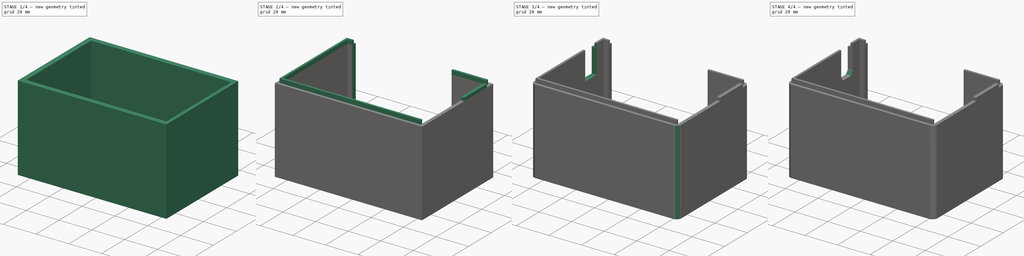
[diagram: build sequence overview — one tinted view per stage of 4, left to right]
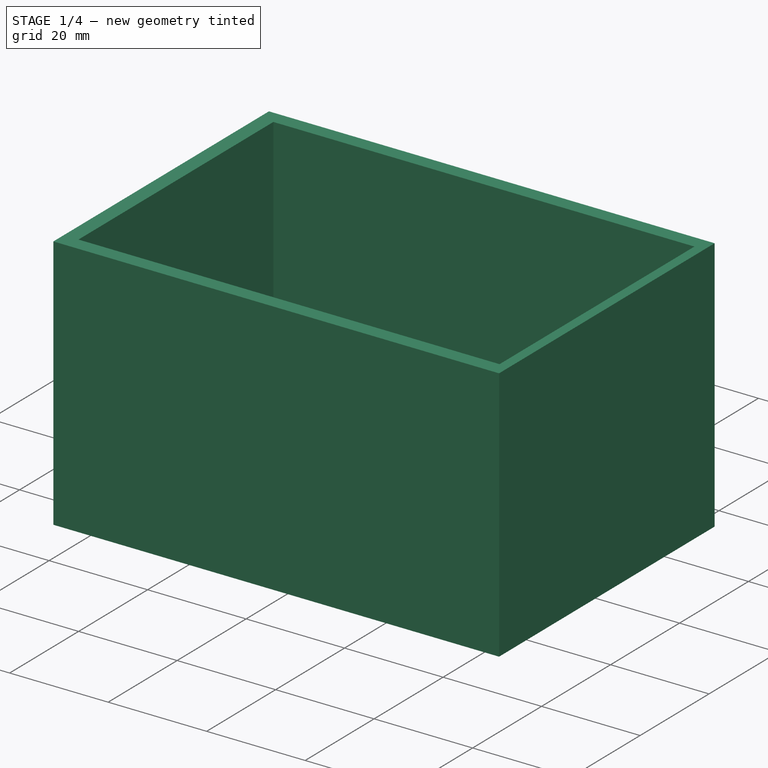
[diagram: stage 1 of 4 — iso view after this stage's code; geometry added in this stage tinted green]
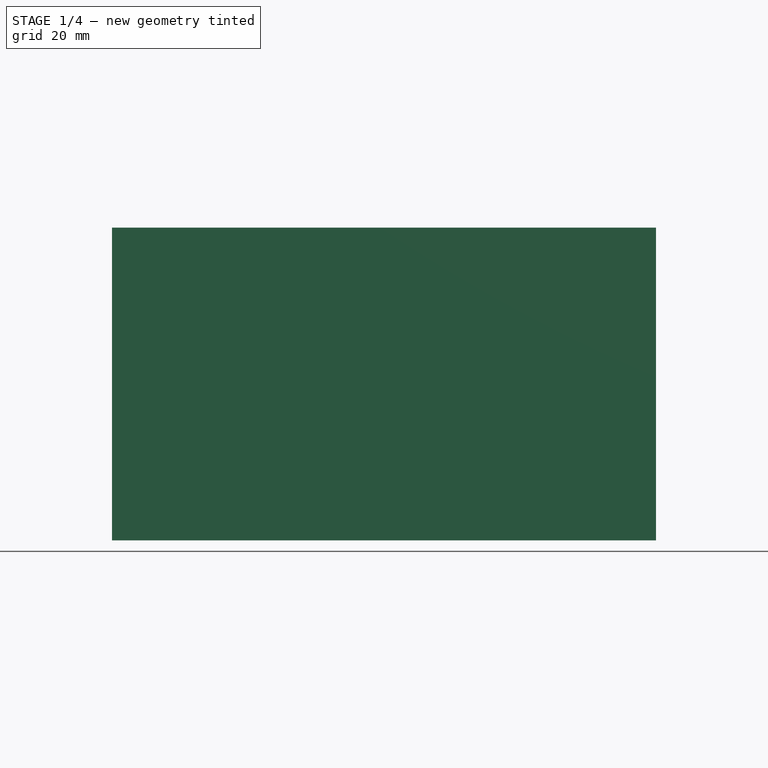
[diagram: stage 1 of 4 — front view after this stage's code; geometry added in this stage tinted green]
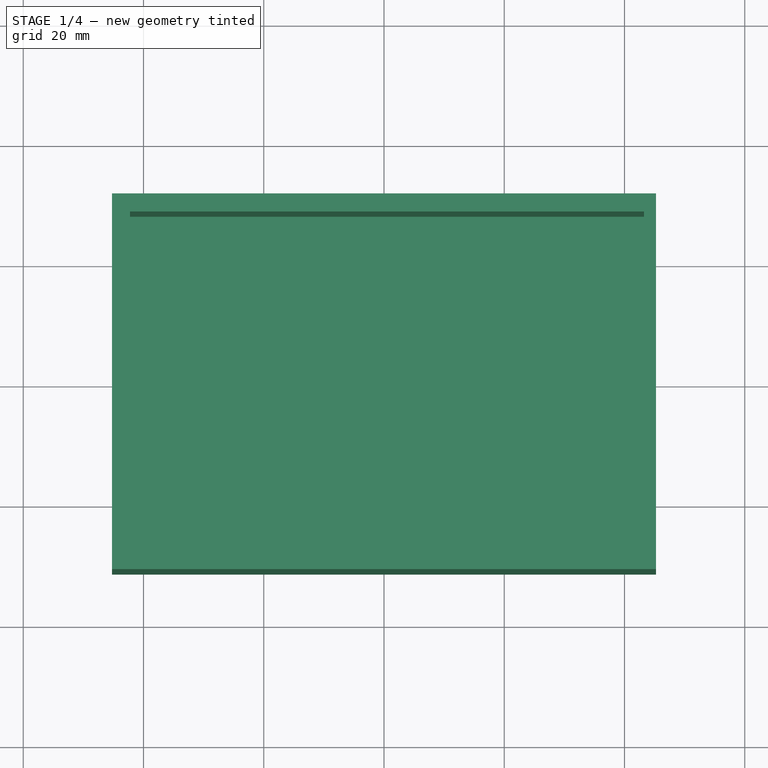
[diagram: stage 1 of 4 — top view after this stage's code; geometry added in this stage tinted green]
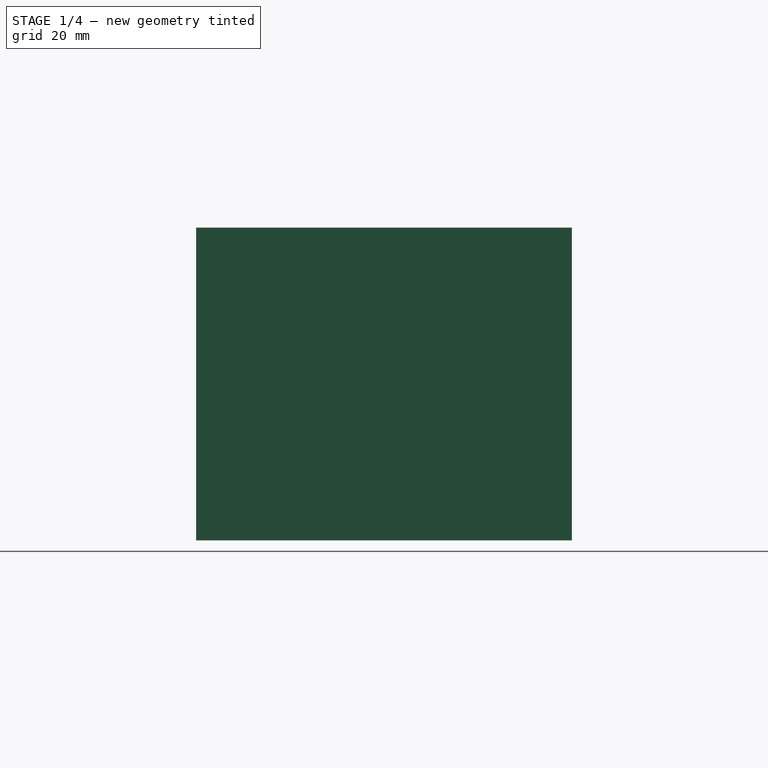
[diagram: stage 1 of 4 — right view after this stage's code; geometry added in this stage tinted green]
FCSTD DOCUMENT  (FreeCAD 0.19R19180 (Git))
Label: top
License: All rights reserved
LicenseURL: http://en.wikipedia.org/wiki/All_rights_reserved
objects: Sketcher::SketchObject×7, PartDesign::Pad×4, PartDesign::Pocket×4, PartDesign::Fillet×2, PartDesign::Body×1
note: 26 computed .brp shape members not serialized (recipe doc carries the construction recipe); baked Part::Feature solids carry a one-line shape summary decoded from their .brp

FEATURE [Sketcher::SketchObject] Sketch
  MapMode = 5
  Support = -> [XY_Plane]
  sketch-geometry (4):
    g0: LineSegment StartX=-45.25 StartY=31.25 StartZ=0 EndX=45.25 EndY=31.25 EndZ=0
    g1: LineSegment StartX=45.25 StartY=31.25 StartZ=0 EndX=45.25 EndY=-31.25 EndZ=0
    g2: LineSegment StartX=45.25 StartY=-31.25 StartZ=0 EndX=-45.25 EndY=-31.25 EndZ=0
    g3: LineSegment StartX=-45.25 StartY=-31.25 StartZ=0 EndX=-45.25 EndY=31.25 EndZ=0
  constraints (12):
    c: Coincident(g0,g1)
    c: Coincident(g1,g2)
    c: Coincident(g2,g3)
    c: Coincident(g3,g0)
    c: Horizontal(g0)
    c: Horizontal(g2)
    c: Vertical(g1)
    c: Vertical(g3)
    c: DistanceX(g0,g0) = 90.5
    c: DistanceY(g1,g1) = 62.5
    c: DistanceX(g0,g-1) = 45.25
    c: DistanceY(g-1,g0) = 31.25
FEATURE [PartDesign::Pad] Pad
  Length = 52
  Length2 = 100
  Profile = -> Sketch
  Type = 0
FEATURE [Sketcher::SketchObject] Sketch001
  ExternalGeometry = -> [Pad]
  MapMode = 5
  Placement = pos=(0,0,52) rot=(0,0,1;0rad)
  Support = -> [Pad]
  sketch-geometry (4):
    g0: LineSegment StartX=-42.25 StartY=28.25 StartZ=0 EndX=43.25 EndY=28.25 EndZ=0
    g1: LineSegment StartX=43.25 StartY=28.25 StartZ=0 EndX=43.25 EndY=-28.25 EndZ=0
    g2: LineSegment StartX=43.25 StartY=-28.25 StartZ=0 EndX=-42.25 EndY=-28.25 EndZ=0
    g3: LineSegment StartX=-42.25 StartY=-28.25 StartZ=0 EndX=-42.25 EndY=28.25 EndZ=0
  constraints (12):
    c: Coincident(g0,g1)
    c: Coincident(g1,g2)
    c: Coincident(g2,g3)
    c: Coincident(g3,g0)
    c: Horizontal(g0)
    c: Horizontal(g2)
    c: Vertical(g1)
    c: Vertical(g3)
    c: DistanceX(g0,g-3) = 2
    c: DistanceY(g0,g-3) = 3
    c: DistanceX(g-5,g2) = 3
    c: DistanceY(g-5,g2) = 3
FEATURE [PartDesign::Pocket] Pocket
  BaseFeature = -> Pad
  Length = 50
  Length2 = 100
  Profile = -> Sketch001
  Type = 0
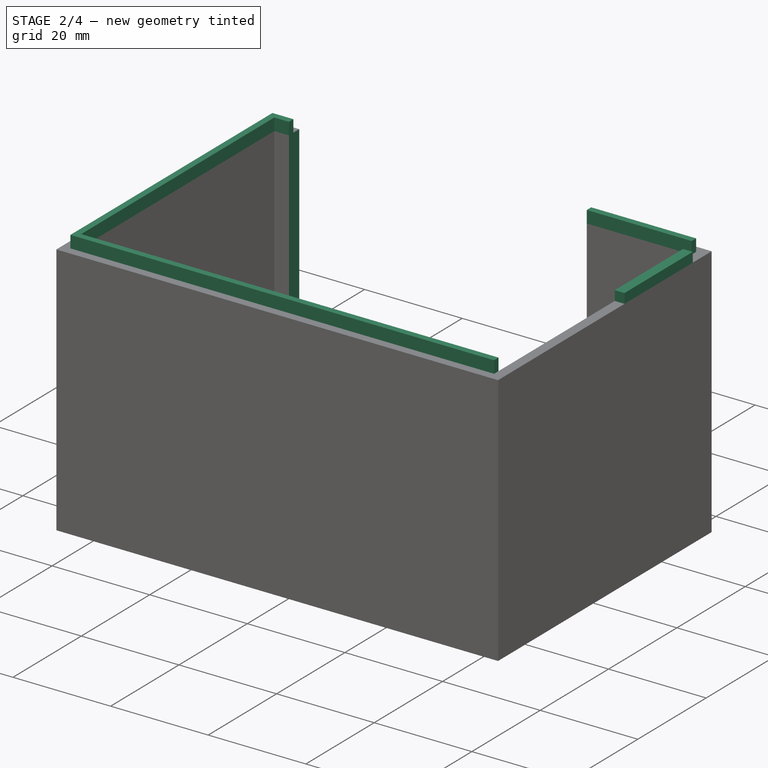
[diagram: stage 2 of 4 — iso view after this stage's code; geometry added in this stage tinted green]
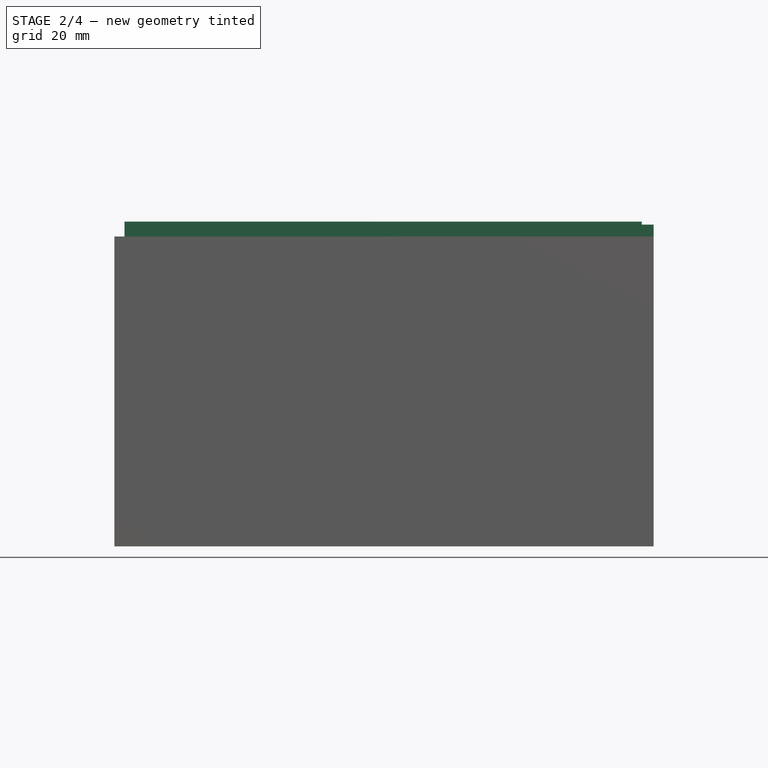
[diagram: stage 2 of 4 — front view after this stage's code; geometry added in this stage tinted green]
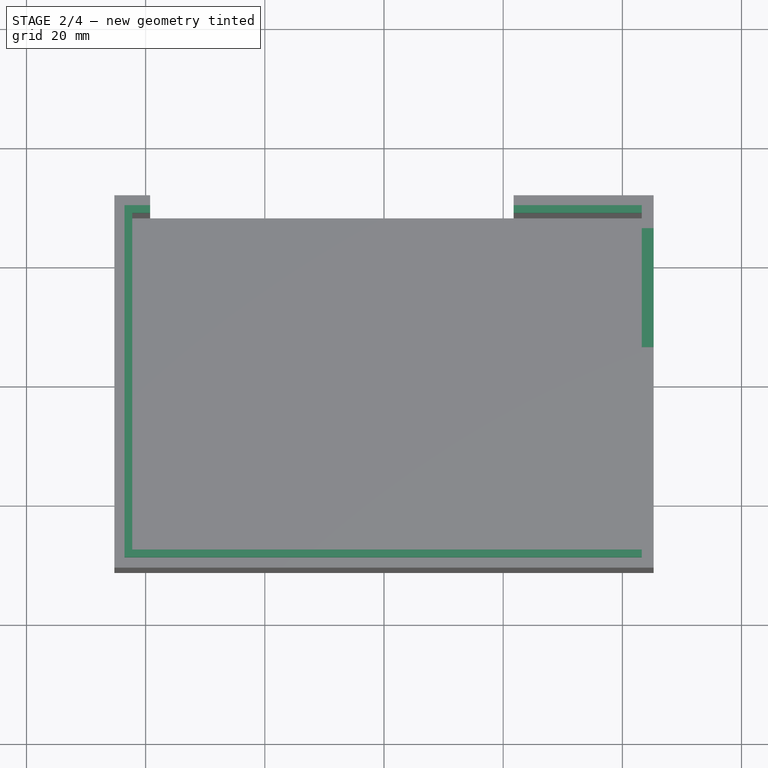
[diagram: stage 2 of 4 — top view after this stage's code; geometry added in this stage tinted green]
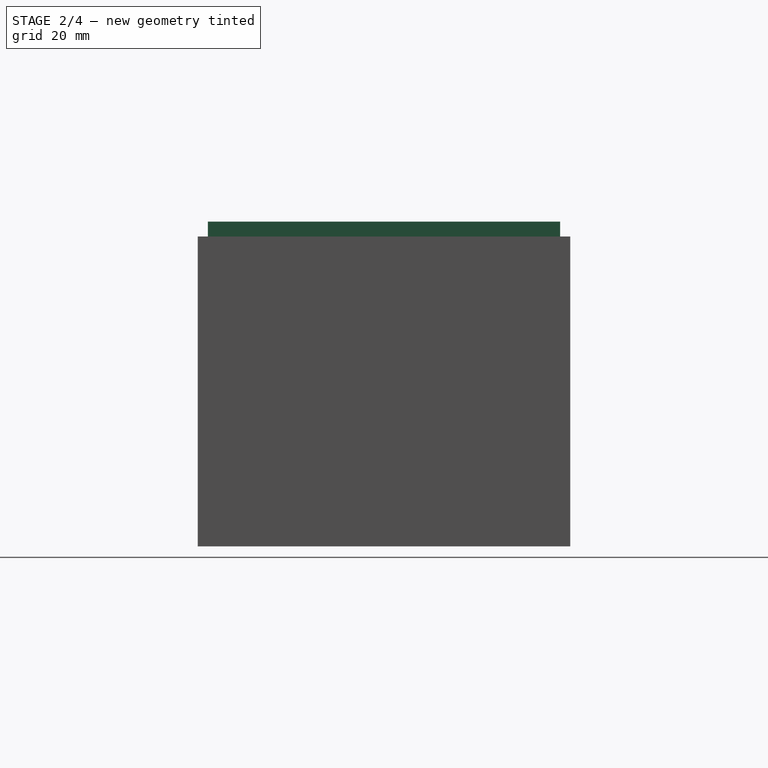
[diagram: stage 2 of 4 — right view after this stage's code; geometry added in this stage tinted green]
FEATURE [Sketcher::SketchObject] Sketch002
  ExternalGeometry = -> [Pocket]
  MapMode = 5
  Placement = pos=(0,0,52) rot=(0,0,1;0rad)
  Support = -> [Pocket]
  sketch-geometry (4):
    g0: LineSegment StartX=-39.25 StartY=31.25 StartZ=0 EndX=21.75 EndY=31.25 EndZ=0
    g1: LineSegment StartX=21.75 StartY=31.25 StartZ=0 EndX=21.75 EndY=28.25 EndZ=0
    g2: LineSegment StartX=21.75 StartY=28.25 StartZ=0 EndX=-39.25 EndY=28.25 EndZ=0
    g3: LineSegment StartX=-39.25 StartY=28.25 StartZ=0 EndX=-39.25 EndY=31.25 EndZ=0
  constraints (12):
    c: Coincident(g0,g1)
    c: Coincident(g1,g2)
    c: Coincident(g2,g3)
    c: Coincident(g3,g0)
    c: Horizontal(g0)
    c: Horizontal(g2)
    c: Vertical(g1)
    c: Vertical(g3)
    c: Horizontal(g2,g-3)
    c: Horizontal(g0,g-4)
    c: DistanceX(g-3,g2) = 3
    c: DistanceX(g0,g0) = 61
FEATURE [PartDesign::Pocket] Pocket001
  BaseFeature = -> Pocket
  Length = 52
  Length2 = 100
  Profile = -> Sketch002
  Type = 0
FEATURE [Sketcher::SketchObject] Sketch003
  ExternalGeometry = -> [Pocket001]
  MapMode = 5
  Placement = pos=(0,0,52) rot=(0,0,1;0rad)
  Support = -> [Pocket001]
  sketch-geometry (16):
    g0: LineSegment StartX=-42.25 StartY=29.55 StartZ=0 EndX=-39.25 EndY=29.55 EndZ=0
    g1: LineSegment StartX=-39.25 StartY=29.55 StartZ=0 EndX=-39.25 EndY=28.25 EndZ=0
    g2: LineSegment StartX=-39.25 StartY=28.25 StartZ=0 EndX=-42.25 EndY=28.25 EndZ=0
    g3: LineSegment StartX=-42.25 StartY=28.25 StartZ=0 EndX=-42.25 EndY=29.55 EndZ=0
    g4: LineSegment StartX=-43.55 StartY=29.55 StartZ=0 EndX=-42.25 EndY=29.55 EndZ=0
    g5: LineSegment StartX=-42.25 StartY=29.55 StartZ=0 EndX=-42.25 EndY=-28.25 EndZ=0
    g6: LineSegment StartX=-42.25 StartY=-28.25 StartZ=0 EndX=-43.55 EndY=-28.25 EndZ=0
    g7: LineSegment StartX=-43.55 StartY=-28.25 StartZ=0 EndX=-43.55 EndY=29.55 EndZ=0
    g8: LineSegment StartX=-43.55 StartY=-28.25 StartZ=0 EndX=43.25 EndY=-28.25 EndZ=0
    g9: LineSegment StartX=43.25 StartY=-28.25 StartZ=0 EndX=43.25 EndY=-29.55 EndZ=0
    g10: LineSegment StartX=43.25 StartY=-29.55 StartZ=0 EndX=-43.55 EndY=-29.55 EndZ=0
    g11: LineSegment StartX=-43.55 StartY=-29.55 StartZ=0 EndX=-43.55 EndY=-28.25 EndZ=0
    g12: LineSegment StartX=21.75 StartY=29.55 StartZ=0 EndX=43.25 EndY=29.55 EndZ=0
    g13: LineSegment StartX=43.25 StartY=29.55 StartZ=0 EndX=43.25 EndY=28.25 EndZ=0
    g14: LineSegment StartX=43.25 StartY=28.25 StartZ=0 EndX=21.75 EndY=28.25 EndZ=0
    g15: LineSegment StartX=21.75 StartY=28.25 StartZ=0 EndX=21.75 EndY=29.55 EndZ=0
  constraints (44):
    c: Coincident(g0,g1)
    c: Coincident(g1,g2)
    c: Coincident(g2,g3)
    c: Coincident(g3,g0)
    c: Horizontal(g0)
    c: Horizontal(g2)
    c: Vertical(g1)
    c: Vertical(g3)
    c: Coincident(g2,g-3)
    c: Vertical(g0,g-4)
    c: DistanceY(g3,g3) = 1.3
    c: Coincident(g4,g5)
    c: Coincident(g5,g6)
    c: Coincident(g6,g7)
    c: Coincident(g7,g4)
    c: Horizontal(g4)
    c: Horizontal(g6)
    c: Vertical(g5)
    c: Vertical(g7)
    c: Coincident(g-5,g5)
    c: DistanceY(g0,g4) = 0
    c: DistanceX(g4,g4) = 1.3
    c: Coincident(g8,g9)
    c: Coincident(g9,g10)
    c: Coincident(g10,g11)
    c: Coincident(g11,g8)
    c: Horizontal(g8)
    c: Horizontal(g10)
    c: Vertical(g9)
    c: Vertical(g11)
    c: Coincident(g8,g6)
    c: DistanceY(g11,g11) = 1.3
    c: DistanceX(g8,g-6) = 0
    c: Coincident(g12,g13)
    c: Coincident(g13,g14)
    c: Coincident(g14,g15)
    c: Coincident(g15,g12)
    c: Horizontal(g12)
    c: Horizontal(g14)
    c: Vertical(g13)
    c: Vertical(g15)
    c: Coincident(g-7,g13)
    c: DistanceY(g13,g13) = 1.3
    c: Vertical(g12,g-8)
FEATURE [PartDesign::Pad] Pad001
  BaseFeature = -> Pocket001
  Length = 2.5
  Length2 = 100
  Profile = -> Sketch003
  Type = 0
FEATURE [Sketcher::SketchObject] Sketch004
  ExternalGeometry = -> [Pad001]
  MapMode = 5
  Placement = pos=(0,0,52) rot=(0,0,1;0rad)
  Support = -> [Pad001]
  sketch-geometry (4):
    g0: LineSegment StartX=43.25 StartY=25.7 StartZ=0 EndX=45.25 EndY=25.7 EndZ=0
    g1: LineSegment StartX=45.25 StartY=25.7 StartZ=0 EndX=45.25 EndY=5.75 EndZ=0
    g2: LineSegment StartX=45.25 StartY=5.75 StartZ=0 EndX=43.25 EndY=5.75 EndZ=0
    g3: LineSegment StartX=43.25 StartY=5.75 StartZ=0 EndX=43.25 EndY=25.7 EndZ=0
  constraints (12):
    c: Coincident(g0,g1)
    c: Coincident(g1,g2)
    c: Coincident(g2,g3)
    c: Coincident(g3,g0)
    c: Horizontal(g0)
    c: Horizontal(g2)
    c: Vertical(g1)
    c: Vertical(g3)
    c: Vertical(g1,g-3)
    c: Vertical(g-4,g0)
    c: DistanceY(g1,g-5) = 25.5
    c: DistanceY(g0,g-5) = 5.55
FEATURE [PartDesign::Pad] Pad002
  BaseFeature = -> Pad001
  Length = 2
  Length2 = 100
  Profile = -> Sketch004
  Type = 0
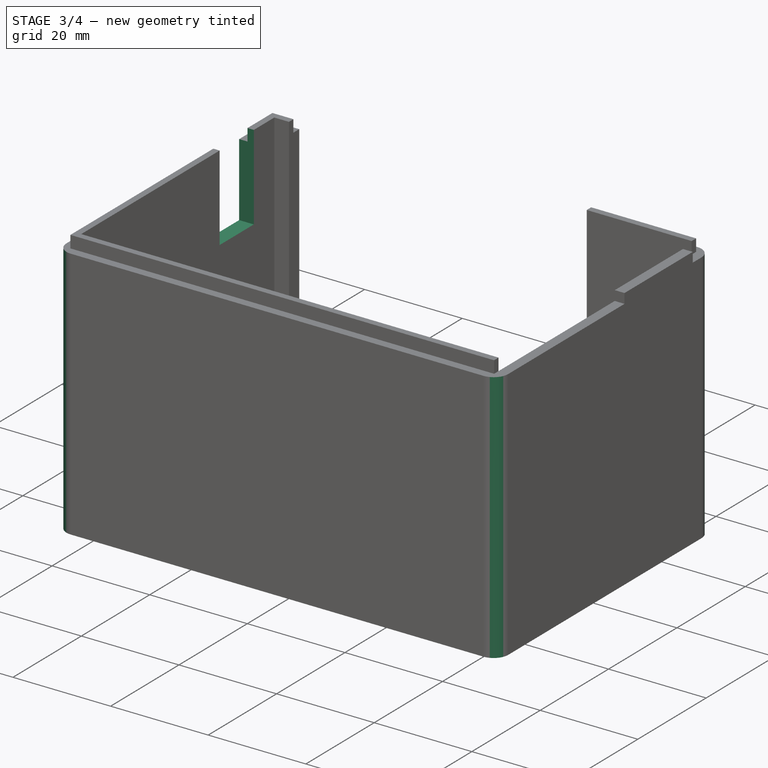
[diagram: stage 3 of 4 — iso view after this stage's code; geometry added in this stage tinted green]
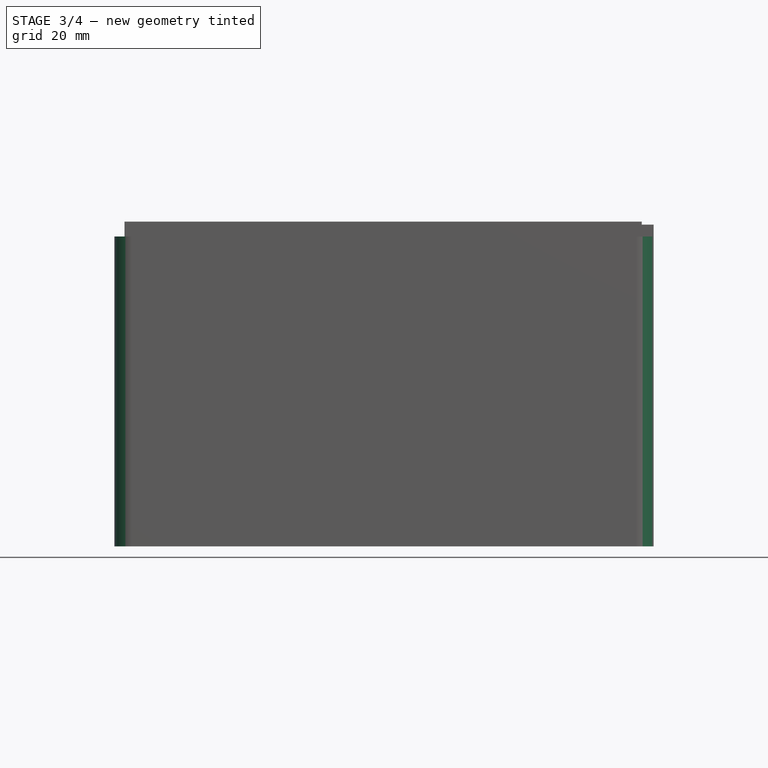
[diagram: stage 3 of 4 — front view after this stage's code; geometry added in this stage tinted green]
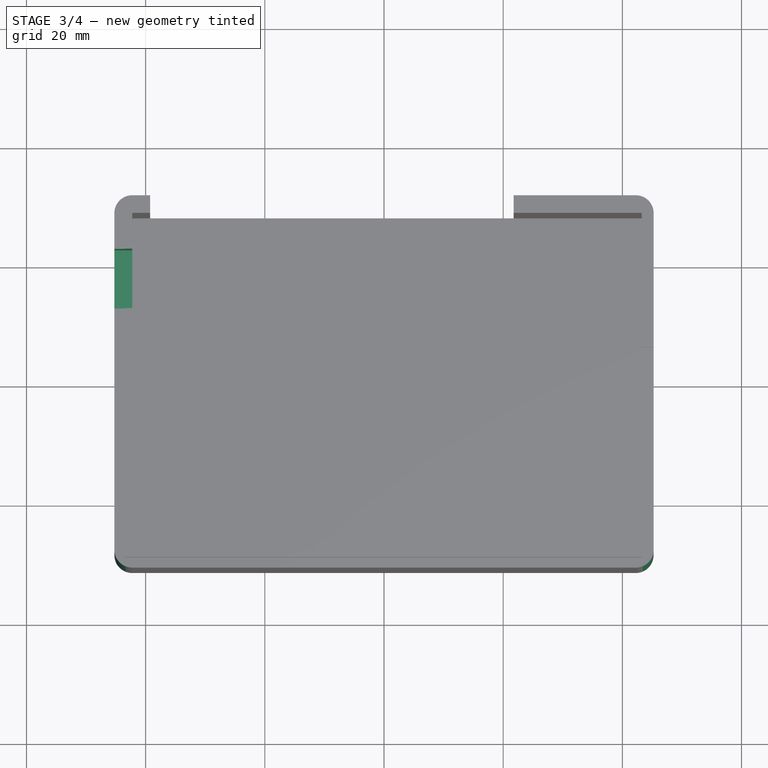
[diagram: stage 3 of 4 — top view after this stage's code; geometry added in this stage tinted green]
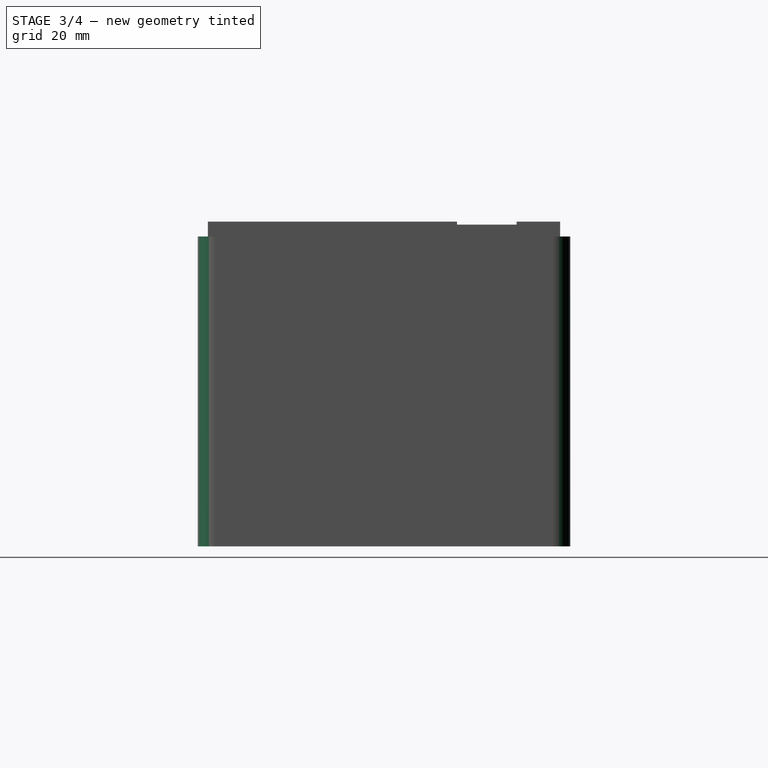
[diagram: stage 3 of 4 — right view after this stage's code; geometry added in this stage tinted green]
FEATURE [PartDesign::Pad] Pad003
  BaseFeature = -> Pad002
  Length = 2
  Length2 = 100
  Profile = -> Sketch004
  Type = 0
FEATURE [PartDesign::Fillet] Fillet
  Base = -> Pad003 [Edge29,Edge28,Edge4,Edge27]
  BaseFeature = -> Pad003
  Radius = 3
FEATURE [Sketcher::SketchObject] Sketch005
  ExternalGeometry = -> [Fillet]
  MapMode = 5
  Placement = pos=(-45.25,0,0) rot=(0.57735,-0.57735,-0.57735;2.0944rad)
  Support = -> [Fillet]
  sketch-geometry (4):
    g0: LineSegment StartX=-22.25 StartY=55 StartZ=0 EndX=-12.25 EndY=55 EndZ=0
    g1: LineSegment StartX=-12.25 StartY=55 StartZ=0 EndX=-12.25 EndY=37 EndZ=0
    g2: LineSegment StartX=-12.25 StartY=37 StartZ=0 EndX=-22.25 EndY=37 EndZ=0
    g3: LineSegment StartX=-22.25 StartY=37 StartZ=0 EndX=-22.25 EndY=55 EndZ=0
  constraints (12):
    c: Coincident(g0,g1)
    c: Coincident(g1,g2)
    c: Coincident(g2,g3)
    c: Coincident(g3,g0)
    c: Horizontal(g0)
    c: Horizontal(g2)
    c: Vertical(g1)
    c: Vertical(g3)
    c: DistanceY(g-3,g0) = 3
    c: DistanceX(g-3,g0) = 9
    c: DistanceX(g0,g0) = 10
    c: DistanceY(g3,g3) = 18
FEATURE [PartDesign::Pocket] Pocket002
  BaseFeature = -> Fillet
  Length = 5
  Length2 = 100
  Profile = -> Sketch005
  Type = 0
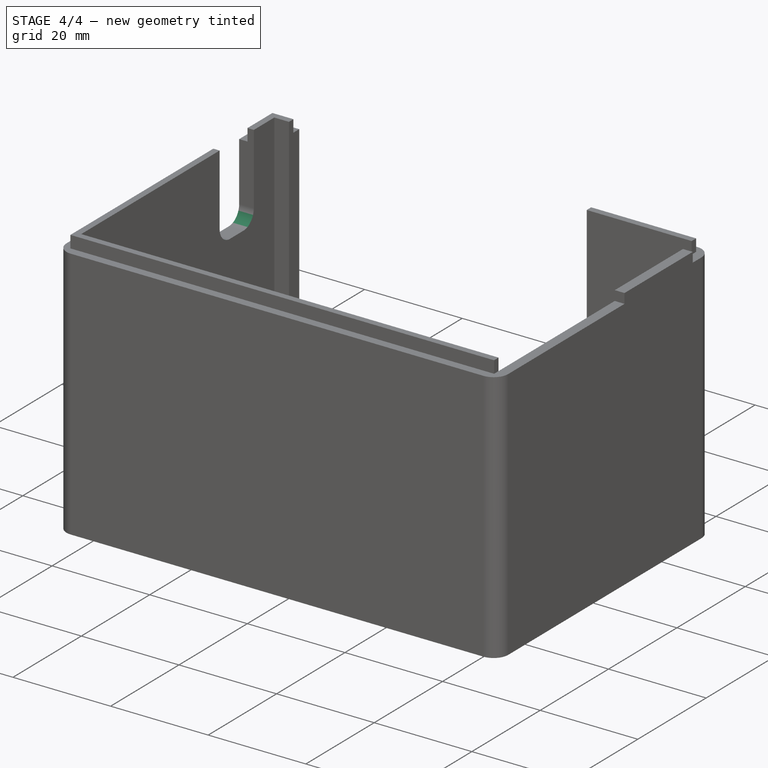
[diagram: stage 4 of 4 — iso view after this stage's code; geometry added in this stage tinted green]
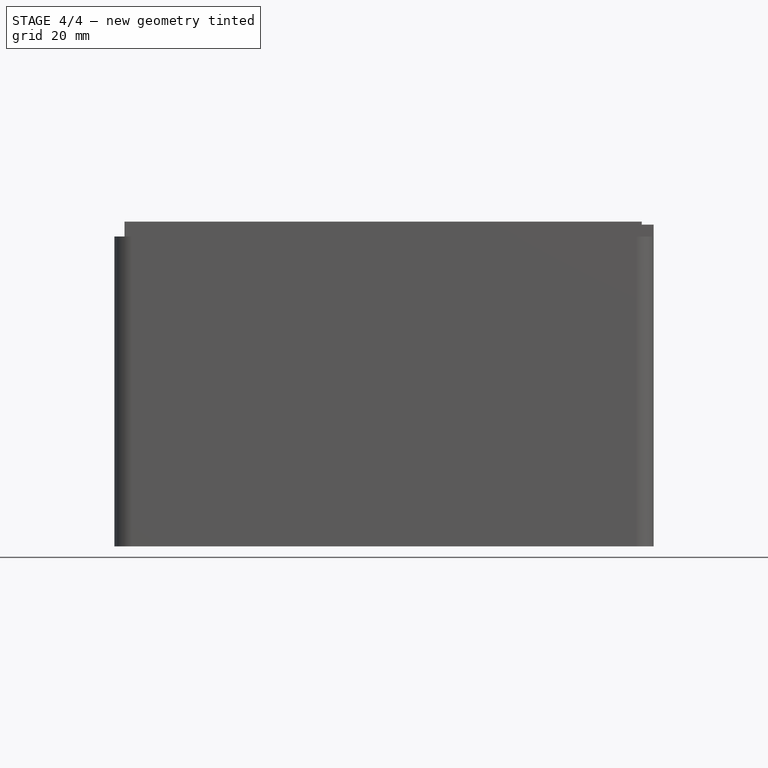
[diagram: stage 4 of 4 — front view after this stage's code; geometry added in this stage tinted green]
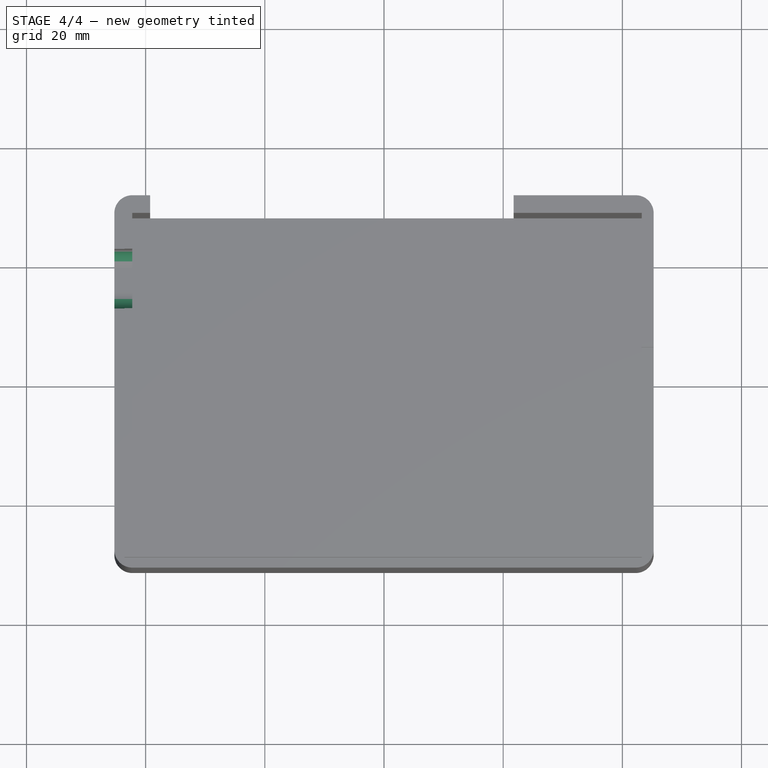
[diagram: stage 4 of 4 — top view after this stage's code; geometry added in this stage tinted green]
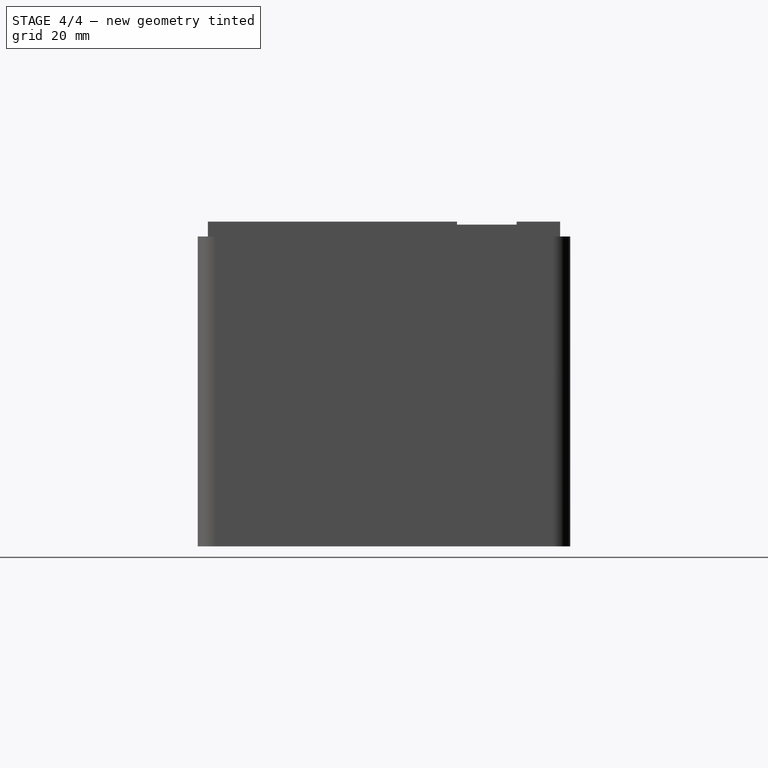
[diagram: stage 4 of 4 — right view after this stage's code; geometry added in this stage tinted green]
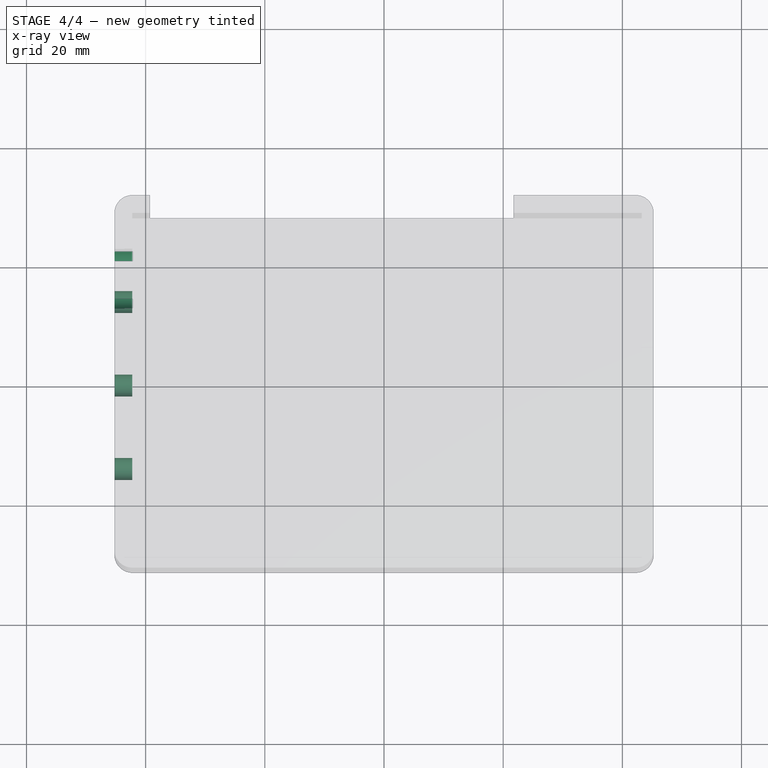
[diagram: stage 4 of 4 — x-ray composite at the top view; earlier geometry ghosted, this stage's added geometry solid]
FEATURE [PartDesign::Fillet] Fillet001
  Base = -> Pocket002 [Edge61,Edge68]
  BaseFeature = -> Pocket002
  Radius = 3
FEATURE [Sketcher::SketchObject] Sketch006
  MapMode = 5
  Placement = pos=(-45.25,0,0) rot=(0.57735,-0.57735,-0.57735;2.0944rad)
  Support = -> [Fillet001]
  sketch-geometry (3):
    g0: Circle CenterX=-14 CenterY=12 CenterZ=0 NormalX=0 NormalY=0 NormalZ=1 AngleXU=0 Radius=1.85
    g1: Circle CenterX=0 CenterY=12 CenterZ=0 NormalX=0 NormalY=0 NormalZ=1 AngleXU=0 Radius=1.85
    g2: Circle CenterX=14 CenterY=12 CenterZ=0 NormalX=0 NormalY=0 NormalZ=1 AngleXU=0 Radius=1.85
  constraints (9):
    c: PointOnObject(g1,g-2)
    c: Horizontal(g1,g0)
    c: Horizontal(g0,g2)
    c: DistanceY(g-1,g1) = 12
    c: DistanceX(g0,g1) = 14
    c: DistanceX(g1,g2) = 14
    c: Diameter(g2) = 3.7
    c: Equal(g2,g1)
    c: Equal(g2,g0)
FEATURE [PartDesign::Pocket] Pocket003
  BaseFeature = -> Fillet001
  Length = 5
  Length2 = 100
  Profile = -> Sketch006
  Type = 0
FEATURE [PartDesign::Body] Body
  Group = -> [Sketch,Pad,Sketch001,Pocket,Sketch002,Pocket001,Sketch003,Pad001,Sketch004,Pad002,Pad003,Fillet,Sketch005,Pocket002,Fillet001,Sketch006,Pocket003]
  Origin = -> Origin
  Tip = -> Pocket003
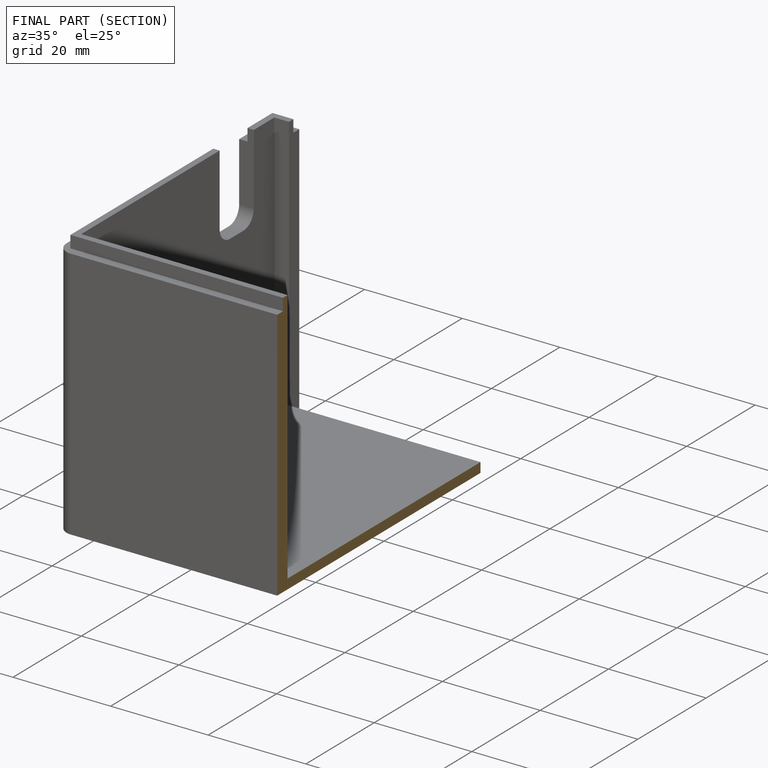
[diagram: finished part — half-section view (interior)]
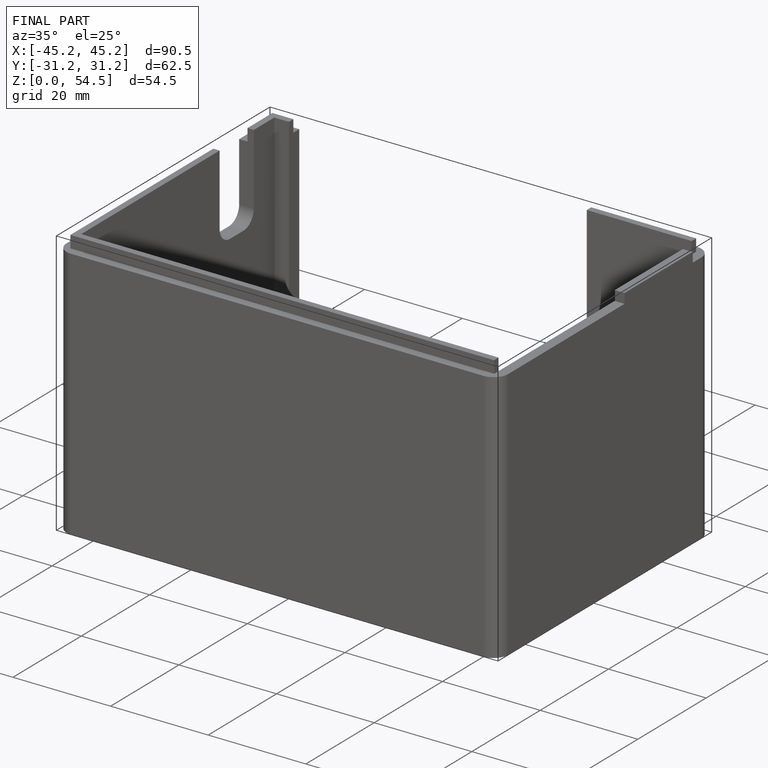
[diagram: finished part — iso view with bounding-box wireframe]
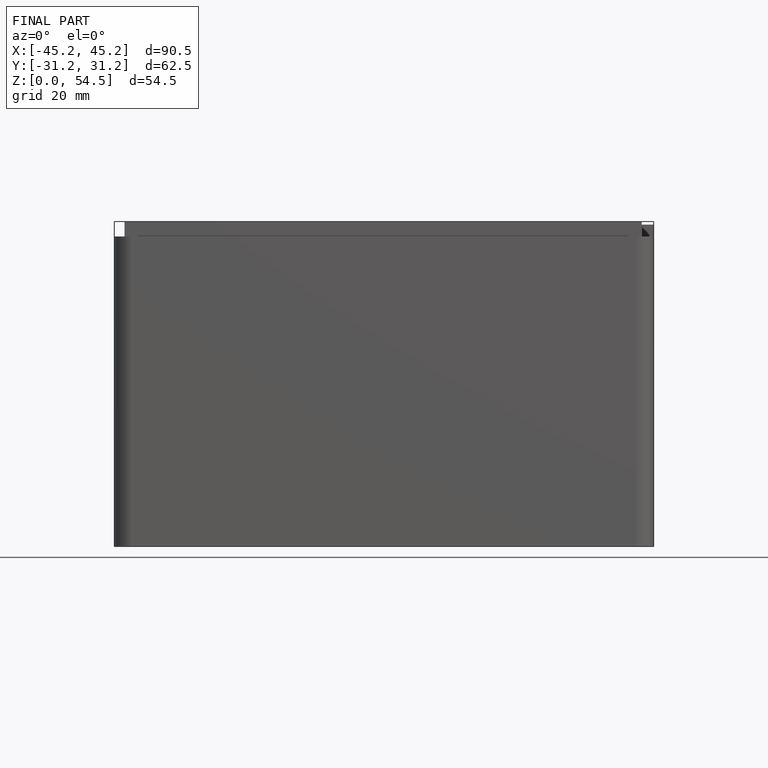
[diagram: finished part — front view with bounding-box wireframe]
